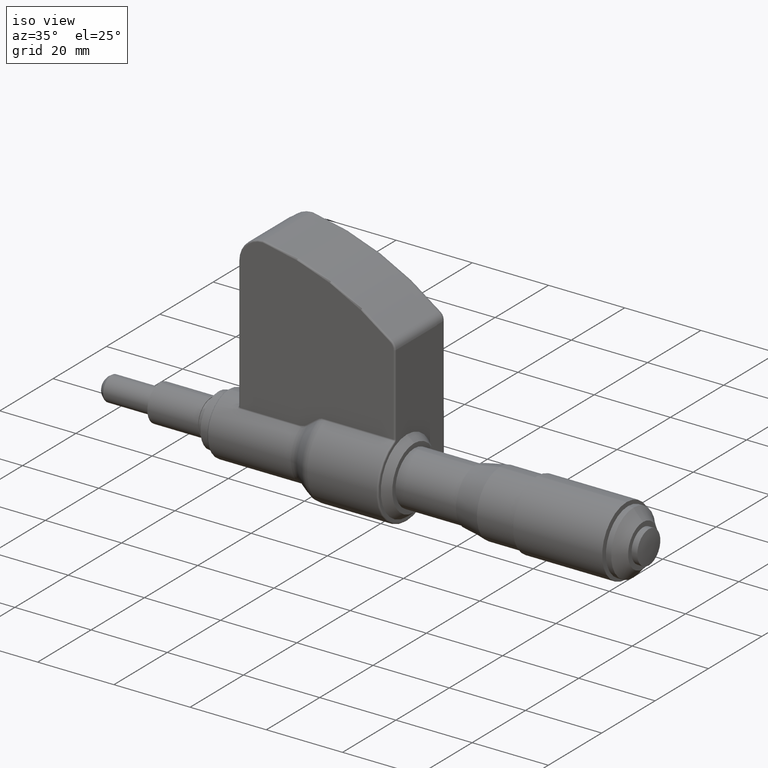
[diagram: clean part render]
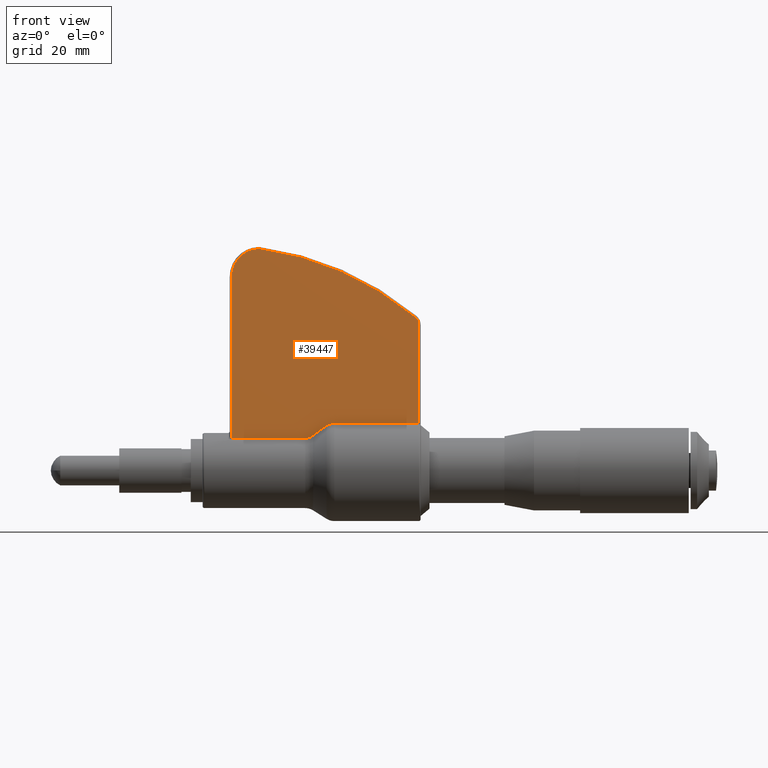
[diagram: tour spotlight — one face highlighted and labeled with its STEP entity id]
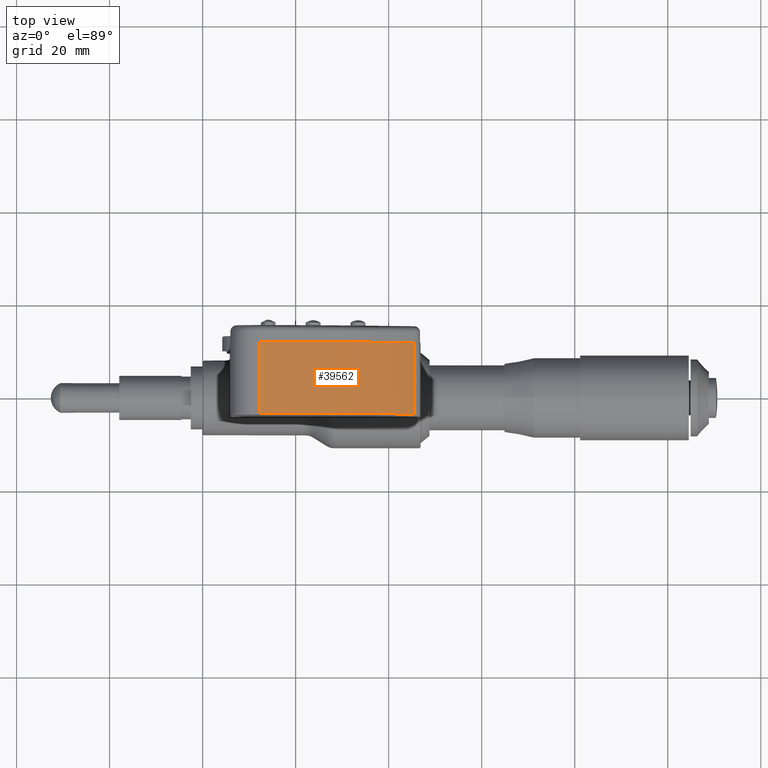
[diagram: tour spotlight — one face highlighted and labeled with its STEP entity id]
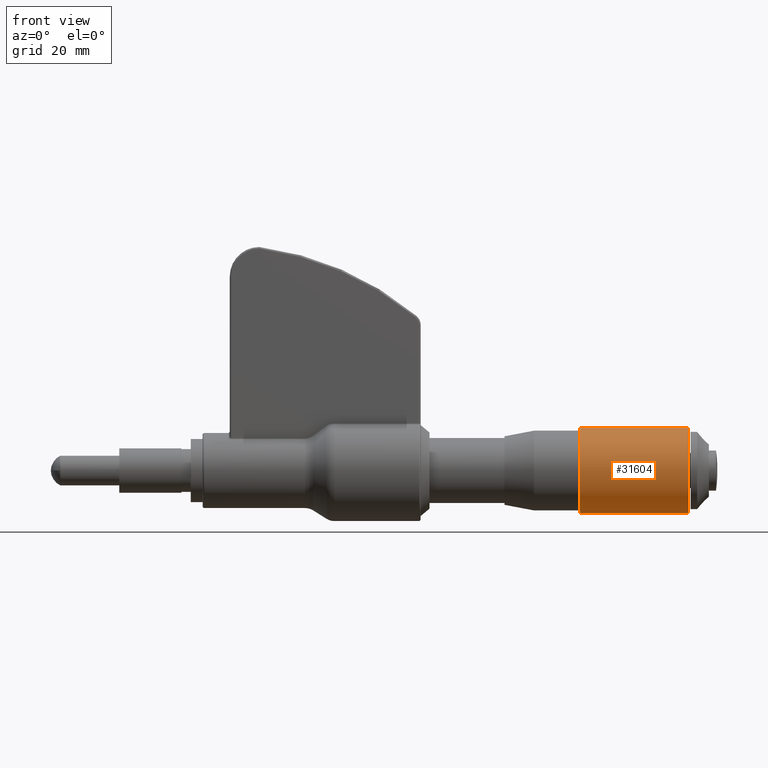
[diagram: tour spotlight — one face highlighted and labeled with its STEP entity id]
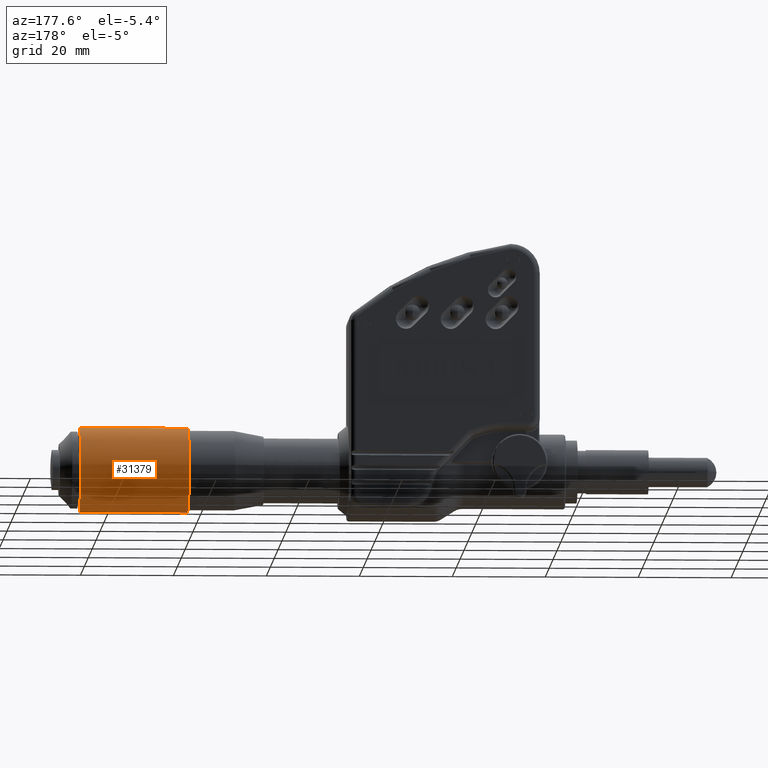
[diagram: tour spotlight — one face highlighted and labeled with its STEP entity id]
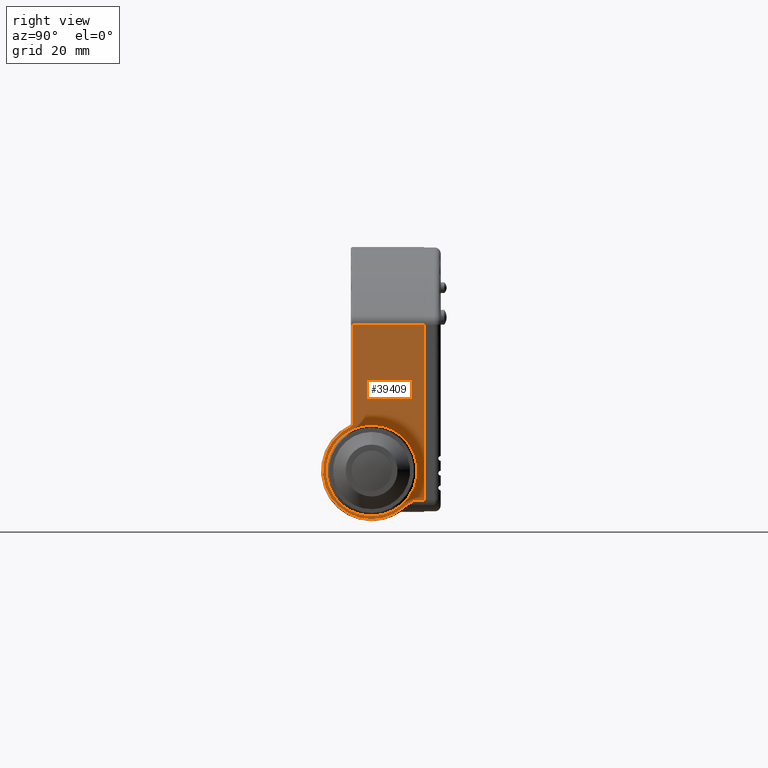
[diagram: tour spotlight — one face highlighted and labeled with its STEP entity id]
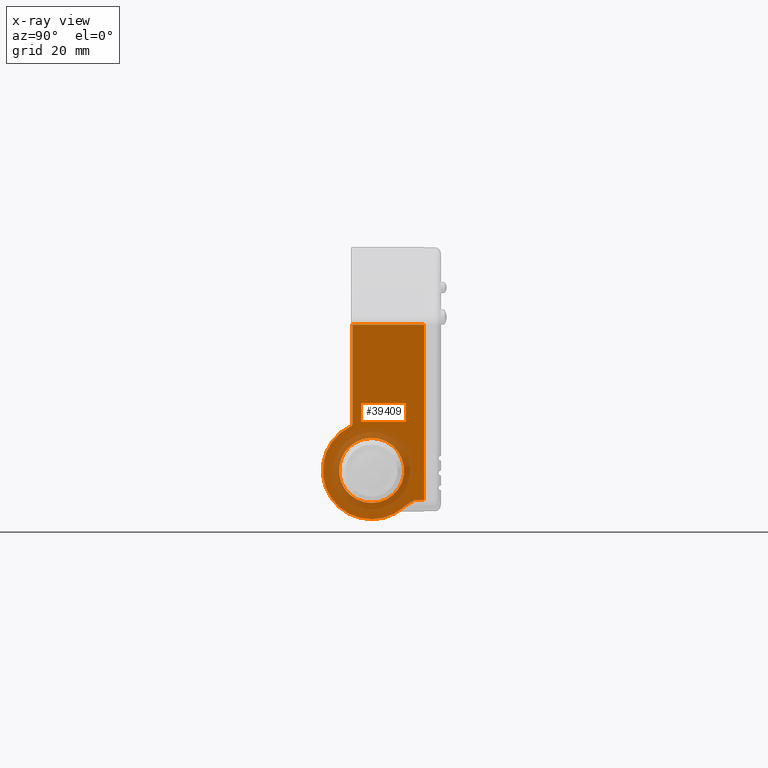
[diagram: x-ray of the same camera — body ghosted, this tour face saturated]
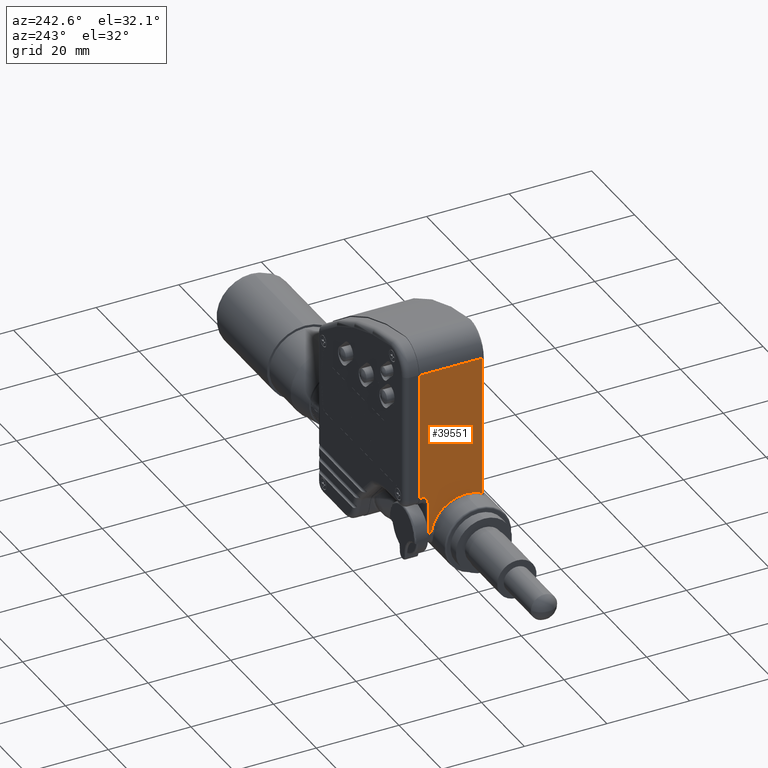
[diagram: tour spotlight — one face highlighted and labeled with its STEP entity id]
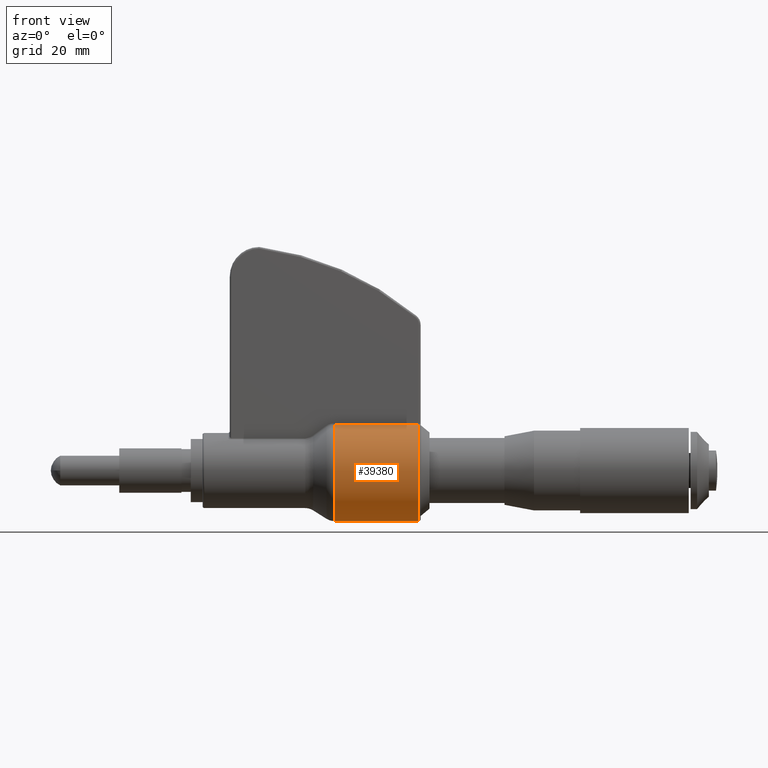
[diagram: tour spotlight — one face highlighted and labeled with its STEP entity id]
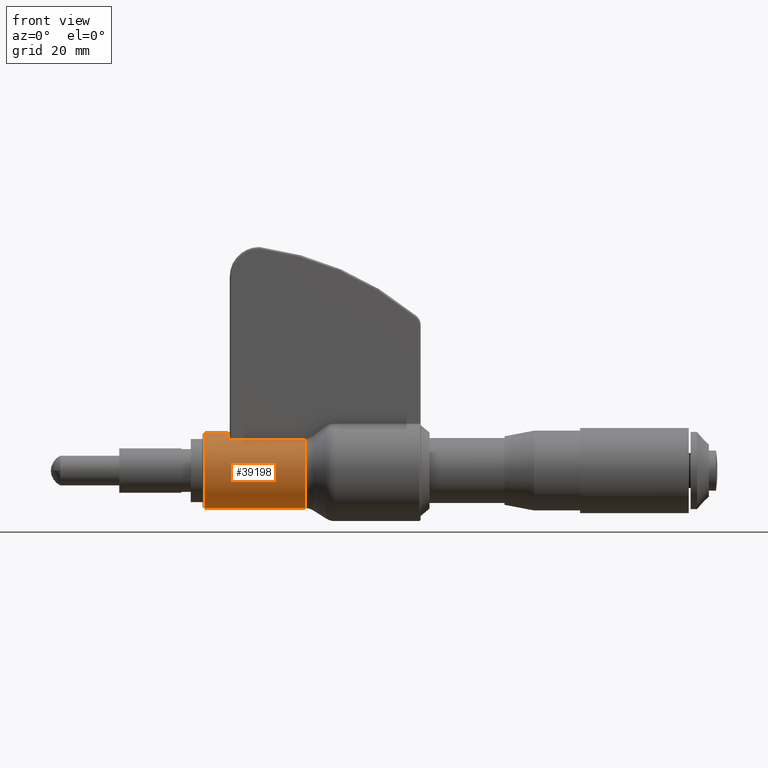
[diagram: tour spotlight — one face highlighted and labeled with its STEP entity id]
A machine part: a face-by-face anatomy tour. The part has 1125 B-rep faces; the first image is the clean iso view, then the 8 largest visible faces are spotlighted one at a time (largest first), each with its STEP entity span.

Face 1 — front view, entity #39447. In plain terms, the highlighted planar face has unit normal (0, 1, 0).
Definition (entity closure, byte-faithful):
#39422 = VERTEX_POINT ( 'NONE', #67612 ) ;
#39424 = ORIENTED_EDGE ( 'NONE', *, *, #39426, .T. ) ;
#39426 = EDGE_CURVE ( 'NONE', #39422, #39428, #67656, .T. ) ;
#39428 = VERTEX_POINT ( 'NONE', #67658 ) ;
#39442 = ORIENTED_EDGE ( 'NONE', *, *, #39443, .T. ) ;
#39443 = EDGE_CURVE ( 'NONE', #39525, #39527, #67636, .T. ) ;
#39447 = ADVANCED_FACE ( 'NONE', ( #67627 ), #67673, .F. ) ;
#39449 = EDGE_LOOP ( 'NONE', ( #39442, #39452, #39424, #39598, #39491, #39483, #39495, #39504, #39488, #39501 ) ) ;
#39452 = ORIENTED_EDGE ( 'NONE', *, *, #39454, .T. ) ;
#39454 = EDGE_CURVE ( 'NONE', #39527, #39422, #67699, .T. ) ;
#39483 = ORIENTED_EDGE ( 'NONE', *, *, #39493, .T. ) ;
#39485 = VERTEX_POINT ( 'NONE', #67755 ) ;
#39488 = ORIENTED_EDGE ( 'NONE', *, *, #39500, .T. ) ;
#39489 = VERTEX_POINT ( 'NONE', #67752 ) ;
#39490 = EDGE_CURVE ( 'NONE', #39496, #39508, #67747, .T. ) ;
#39491 = ORIENTED_EDGE ( 'NONE', *, *, #39492, .T. ) ;
#39492 = EDGE_CURVE ( 'NONE', #39497, #39506, #67742, .T. ) ;
#39493 = EDGE_CURVE ( 'NONE', #39506, #39485, #67804, .T. ) ;
#39495 = ORIENTED_EDGE ( 'NONE', *, *, #39507, .T. ) ;
#39496 = VERTEX_POINT ( 'NONE', #67793 ) ;
#39497 = VERTEX_POINT ( 'NONE', #67792 ) ;
#39500 = EDGE_CURVE ( 'NONE', #39508, #39489, #67785, .T. ) ;
#39501 = ORIENTED_EDGE ( 'NONE', *, *, #39600, .T. ) ;
#39504 = ORIENTED_EDGE ( 'NONE', *, *, #39490, .T. ) ;
#39506 = VERTEX_POINT ( 'NONE', #67781 ) ;
#39507 = EDGE_CURVE ( 'NONE', #39485, #39496, #67779, .T. ) ;
#39508 = VERTEX_POINT ( 'NONE', #67775 ) ;
#39525 = VERTEX_POINT ( 'NONE', #67807 ) ;
#39527 = VERTEX_POINT ( 'NONE', #67862 ) ;
#39598 = ORIENTED_EDGE ( 'NONE', *, *, #39599, .T. ) ;
#39599 = EDGE_CURVE ( 'NONE', #39428, #39497, #67944, .T. ) ;
#39600 = EDGE_CURVE ( 'NONE', #39489, #39525, #67992, .T. ) ;
#67612 = CARTESIAN_POINT ( 'NONE',  ( 0.8687595900000001400, -0.1749999999999999900, 0.2728667257105564200 ) ) ;
#67627 = FACE_OUTER_BOUND ( 'NONE', #39449, .T. ) ;
#67633 = DIRECTION ( 'NONE',  ( -1.110507314497669100E-016, 0.0000000000000000000, -1.000000000000000000 ) ) ;
#67634 = VECTOR ( 'NONE', #67633, 39.37007874015748100 ) ;
#67635 = CARTESIAN_POINT ( 'NONE',  ( 0.2449999999999997700, -0.1749999999999999900, -0.3129943732329020800 ) ) ;
#67636 = LINE ( 'NONE', #67635, #67634 ) ;
#67650 = CARTESIAN_POINT ( 'NONE',  ( 0.9275970943113064400, -0.1749999999999999900, 0.2934127593448664400 ) ) ;
#67651 = CARTESIAN_POINT ( 'NONE',  ( 0.9190925088394984500, -0.1749999999999999900, 0.2869986295453074700 ) ) ;
#67652 = CARTESIAN_POINT ( 'NONE',  ( 0.9098859447414349200, -0.1749999999999999900, 0.2818967657093212600 ) ) ;
#67653 = CARTESIAN_POINT ( 'NONE',  ( 0.8898417192702291500, -0.1749999999999999900, 0.2747421813549663100 ) ) ;
#67654 = CARTESIAN_POINT ( 'NONE',  ( 0.8794328815080491000, -0.1750000000000000200, 0.2728667254296451800 ) ) ;
#67655 = CARTESIAN_POINT ( 'NONE',  ( 0.8687595900000001400, -0.1749999999999999900, 0.2728667257105564200 ) ) ;
#67656 = B_SPLINE_CURVE_WITH_KNOTS ( 'NONE', 3,
 ( #67655, #67654, #67653, #67652, #67651, #67650 ),
 .UNSPECIFIED., .F., .F.,
 ( 4, 2, 4 ),
 ( 0.0000000000000000000, 0.0008021624092953027600, 0.001604324818590605500 ),
 .UNSPECIFIED. ) ;
#67658 = CARTESIAN_POINT ( 'NONE',  ( 0.9275970943113064400, -0.1749999999999999900, 0.2934127593448664400 ) ) ;
#67668 = DIRECTION ( 'NONE',  ( 0.0000000000000000000, 0.0000000000000000000, 1.000000000000000000 ) ) ;
#67669 = DIRECTION ( 'NONE',  ( 0.0000000000000000000, 1.000000000000000000, 0.0000000000000000000 ) ) ;
#67670 = CARTESIAN_POINT ( 'NONE',  ( 0.5318198378830824000, -0.1749999999999999900, -0.3129943732329020800 ) ) ;
#67671 = AXIS2_PLACEMENT_3D ( 'NONE', #67670, #67669, #67668 ) ;
#67673 = PLANE ( 'NONE',  #67671 ) ;
#67692 = DIRECTION ( 'NONE',  ( 1.000000000000000000, 0.0000000000000000000, 0.0000000000000000000 ) ) ;
#67693 = VECTOR ( 'NONE', #67692, 39.37007874015748100 ) ;
#67694 = CARTESIAN_POINT ( 'NONE',  ( 0.8687595900000001400, -0.1749999999999999900, 0.2728667257105563700 ) ) ;
#67699 = LINE ( 'NONE', #67694, #67693 ) ;
#67742 = B_SPLINE_CURVE_WITH_KNOTS ( 'NONE', 3,
 ( #67743, #67802, #67801, #67800, #67799, #67798, #67797, #67796 ),
 .UNSPECIFIED., .F., .F.,
 ( 4, 2, 2, 4 ),
 ( 0.0000000000000000000, 0.0005070738336131922800, 0.001014147667226384600, 0.002028295334452769100 ),
 .UNSPECIFIED. ) ;
#67743 = CARTESIAN_POINT ( 'NONE',  ( 1.040115906627592700, -0.1749999999999999900, 0.3754513084660061100 ) ) ;
#67744 = DIRECTION ( 'NONE',  ( 3.213938816075602100E-015, 0.0000000000000000000, 1.000000000000000000 ) ) ;
#67745 = DIRECTION ( 'NONE',  ( 0.0000000000000000000, -1.000000000000000000, 0.0000000000000000000 ) ) ;
#67746 = AXIS2_PLACEMENT_3D ( 'NONE', #67754, #67745, #67744 ) ;
#67747 = CIRCLE ( 'NONE', #67746, 0.08500000000000004800 ) ;
#67752 = CARTESIAN_POINT ( 'NONE',  ( 0.4790553771423048400, -0.1749999999999999900, 1.877498101455429100 ) ) ;
#67754 = CARTESIAN_POINT ( 'NONE',  ( 1.745000000000000100, -0.1749999999999999900, 1.233573783103438100 ) ) ;
#67755 = CARTESIAN_POINT ( 'NONE',  ( 1.830000000000000100, -0.1749999999999999900, 0.3996326438117887600 ) ) ;
#67775 = CARTESIAN_POINT ( 'NONE',  ( 1.786715275236673100, -0.1749999999999999900, 1.307633460471953500 ) ) ;
#67776 = DIRECTION ( 'NONE',  ( 0.0000000000000000000, 0.0000000000000000000, 1.000000000000000000 ) ) ;
#67777 = VECTOR ( 'NONE', #67776, 39.37007874015748100 ) ;
#67778 = CARTESIAN_POINT ( 'NONE',  ( 1.830000000000000100, -0.1749999999999999900, 1.233573783103438100 ) ) ;
#67779 = LINE ( 'NONE', #67778, #67777 ) ;
#67781 = CARTESIAN_POINT ( 'NONE',  ( 1.115000000000000200, -0.1749999999999999900, 0.3996326438117889200 ) ) ;
#67782 = DIRECTION ( 'NONE',  ( 6.217652968829031300E-015, 0.0000000000000000000, 1.000000000000000000 ) ) ;
#67783 = DIRECTION ( 'NONE',  ( 0.0000000000000000000, -1.000000000000000000, 0.0000000000000000000 ) ) ;
#67784 = AXIS2_PLACEMENT_3D ( 'NONE', #67791, #67783, #67782 ) ;
#67785 = CIRCLE ( 'NONE', #67784, 2.553836076535482800 ) ;
#67791 = CARTESIAN_POINT ( 'NONE',  ( 0.1532163167739461800, -0.1749999999999999900, -0.6554660934262140900 ) ) ;
#67792 = CARTESIAN_POINT ( 'NONE',  ( 1.040115906627592700, -0.1749999999999999900, 0.3754513084660061100 ) ) ;
#67793 = CARTESIAN_POINT ( 'NONE',  ( 1.830000000000000100, -0.1749999999999999900, 1.233573783103438100 ) ) ;
#67794 = DIRECTION ( 'NONE',  ( 1.000000000000000000, 0.0000000000000000000, 0.0000000000000000000 ) ) ;
#67795 = VECTOR ( 'NONE', #67794, 39.37007874015748100 ) ;
#67796 = CARTESIAN_POINT ( 'NONE',  ( 1.115000000000000200, -0.1749999999999999900, 0.3996326438117889200 ) ) ;
#67797 = CARTESIAN_POINT ( 'NONE',  ( 1.101559856250260900, -0.1749999999999999900, 0.3996326438117889200 ) ) ;
#67798 = CARTESIAN_POINT ( 'NONE',  ( 1.088484272777702900, -0.1749999999999999900, 0.3975357850398482100 ) ) ;
#67799 = CARTESIAN_POINT ( 'NONE',  ( 1.069399912299291700, -0.1749999999999999900, 0.3913477375704913500 ) ) ;
#67800 = CARTESIAN_POINT ( 'NONE',  ( 1.063184555811832500, -0.1749999999999999300, 0.3887799341134965400 ) ) ;
#67801 = CARTESIAN_POINT ( 'NONE',  ( 1.051302521058279400, -0.1749999999999999900, 0.3827815465446525200 ) ) ;
#67802 = CARTESIAN_POINT ( 'NONE',  ( 1.045593635308603300, -0.1750000000000000200, 0.3793377804408295500 ) ) ;
#67803 = CARTESIAN_POINT ( 'NONE',  ( 1.845000000000000200, -0.1749999999999999900, 0.3996326438117887600 ) ) ;
#67804 = LINE ( 'NONE', #67803, #67795 ) ;
#67807 = CARTESIAN_POINT ( 'NONE',  ( 0.2450000000000000200, -0.1749999999999999900, 1.642499999999999800 ) ) ;
#67862 = CARTESIAN_POINT ( 'NONE',  ( 0.2449999999999998600, -0.1749999999999999900, 0.2728667257105563700 ) ) ;
#67944 = B_SPLINE_CURVE_WITH_KNOTS ( 'NONE', 3,
 ( #67996, #67995, #67994, #67993 ),
 .UNSPECIFIED., .F., .F.,
 ( 4, 4 ),
 ( 8.673617379884035500E-019, 0.003536972268658876200 ),
 .UNSPECIFIED. ) ;
#67988 = DIRECTION ( 'NONE',  ( 0.0000000000000000000, 0.0000000000000000000, 1.000000000000000000 ) ) ;
#67989 = DIRECTION ( 'NONE',  ( 0.0000000000000000000, -1.000000000000000000, 0.0000000000000000000 ) ) ;
#67990 = CARTESIAN_POINT ( 'NONE',  ( 0.4800000000000000900, -0.1749999999999999900, 1.642499999999999800 ) ) ;
#67991 = AXIS2_PLACEMENT_3D ( 'NONE', #67990, #67989, #67988 ) ;
#67992 = CIRCLE ( 'NONE', #67991, 0.2350000000000001000 ) ;
#67993 = CARTESIAN_POINT ( 'NONE',  ( 1.040115906627592700, -0.1749999999999999900, 0.3754513084660061100 ) ) ;
#67994 = CARTESIAN_POINT ( 'NONE',  ( 1.002256291789083600, -0.1749999999999999900, 0.3485897494848983500 ) ) ;
#67995 = CARTESIAN_POINT ( 'NONE',  ( 0.9646607315882883600, -0.1749999999999999900, 0.3213660300982192400 ) ) ;
#67996 = CARTESIAN_POINT ( 'NONE',  ( 0.9275970943113064400, -0.1749999999999999900, 0.2934127593448664400 ) ) ;

Face 2 — top view, entity #39562. In plain terms, the highlighted cylindrical surface (partial cylindrical patch) has radius 65.2484 mm, axis along (0, -1, 0).
Definition (entity closure, byte-faithful):
#39558 = EDGE_CURVE ( 'NONE', #39669, #39674, #67871, .T. ) ;
#39560 = EDGE_LOOP ( 'NONE', ( #39567, #39569, #39581, #39580 ) ) ;
#39562 = ADVANCED_FACE ( 'NONE', ( #67867 ), #67896, .T. ) ;
#39567 = ORIENTED_EDGE ( 'NONE', *, *, #39558, .T. ) ;
#39569 = ORIENTED_EDGE ( 'NONE', *, *, #39594, .T. ) ;
#39580 = ORIENTED_EDGE ( 'NONE', *, *, #39633, .F. ) ;
#39581 = ORIENTED_EDGE ( 'NONE', *, *, #39582, .F. ) ;
#39582 = EDGE_CURVE ( 'NONE', #39583, #39595, #67934, .T. ) ;
#39583 = VERTEX_POINT ( 'NONE', #67930 ) ;
#39594 = EDGE_CURVE ( 'NONE', #39674, #39595, #67949, .T. ) ;
#39595 = VERTEX_POINT ( 'NONE', #67950 ) ;
#39633 = EDGE_CURVE ( 'NONE', #39669, #39583, #68027, .T. ) ;
#39669 = VERTEX_POINT ( 'NONE', #68119 ) ;
#39674 = VERTEX_POINT ( 'NONE', #68117 ) ;
#67867 = FACE_OUTER_BOUND ( 'NONE', #39560, .T. ) ;
#67868 = DIRECTION ( 'NONE',  ( 0.0000000000000000000, -1.000000000000000000, 0.0000000000000000000 ) ) ;
#67869 = VECTOR ( 'NONE', #67868, 39.37007874015748100 ) ;
#67870 = CARTESIAN_POINT ( 'NONE',  ( 0.4799999988337663200, 0.4449999999999999500, 1.892499999999999600 ) ) ;
#67871 = LINE ( 'NONE', #67870, #67869 ) ;
#67893 = DIRECTION ( 'NONE',  ( 0.0000000000000000000, 0.0000000000000000000, -1.000000000000000000 ) ) ;
#67894 = DIRECTION ( 'NONE',  ( 0.0000000000000000000, -1.000000000000000000, 0.0000000000000000000 ) ) ;
#67895 = AXIS2_PLACEMENT_3D ( 'NONE', #67898, #67894, #67893 ) ;
#67896 = CYLINDRICAL_SURFACE ( 'NONE', #67895, 2.568836076535483000 ) ;
#67898 = CARTESIAN_POINT ( 'NONE',  ( 0.1532163167739461800, 0.4449999999999999500, -0.6554660934262140900 ) ) ;
#67930 = CARTESIAN_POINT ( 'NONE',  ( 1.795304165165008300, 0.4449999999999999500, 1.319999999999999800 ) ) ;
#67931 = DIRECTION ( 'NONE',  ( 0.0000000000000000000, -1.000000000000000000, 0.0000000000000000000 ) ) ;
#67932 = VECTOR ( 'NONE', #67931, 39.37007874015748100 ) ;
#67933 = CARTESIAN_POINT ( 'NONE',  ( 1.795304165165008300, 0.4449999999999999500, 1.319999999999999800 ) ) ;
#67934 = LINE ( 'NONE', #67933, #67932 ) ;
#67945 = DIRECTION ( 'NONE',  ( 0.0000000000000000000, 0.0000000000000000000, 1.000000000000000000 ) ) ;
#67946 = DIRECTION ( 'NONE',  ( 0.0000000000000000000, 1.000000000000000000, 0.0000000000000000000 ) ) ;
#67947 = CARTESIAN_POINT ( 'NONE',  ( 0.1532163167739461800, -0.1600000000000000000, -0.6554660934262140900 ) ) ;
#67948 = AXIS2_PLACEMENT_3D ( 'NONE', #67947, #67946, #67945 ) ;
#67949 = CIRCLE ( 'NONE', #67948, 2.568836076535483000 ) ;
#67950 = CARTESIAN_POINT ( 'NONE',  ( 1.795304165165008300, -0.1600000000000000000, 1.319999999999999800 ) ) ;
#68027 = CIRCLE ( 'NONE', #68076, 2.568836076535483000 ) ;
#68073 = DIRECTION ( 'NONE',  ( 0.0000000000000000000, 0.0000000000000000000, 1.000000000000000000 ) ) ;
#68074 = DIRECTION ( 'NONE',  ( 0.0000000000000000000, 1.000000000000000000, 0.0000000000000000000 ) ) ;
#68075 = CARTESIAN_POINT ( 'NONE',  ( 0.1532163167739461800, 0.4449999999999999500, -0.6554660934262140900 ) ) ;
#68076 = AXIS2_PLACEMENT_3D ( 'NONE', #68075, #68074, #68073 ) ;
#68117 = CARTESIAN_POINT ( 'NONE',  ( 0.4799999988337663200, -0.1600000000000000000, 1.892499999999999600 ) ) ;
#68119 = CARTESIAN_POINT ( 'NONE',  ( 0.4799999988337663200, 0.4449999999999999500, 1.892499999999999600 ) ) ;

Face 3 — front view, entity #31604. In plain terms, the highlighted cylindrical surface (partial cylindrical patch) has radius 9.144 mm, axis along (-1, 0, 0).
Definition (entity closure, byte-faithful):
#31253 = VERTEX_POINT ( 'NONE', #46082 ) ;
#31257 = EDGE_CURVE ( 'NONE', #31387, #31253, #46077, .T. ) ;
#31387 = VERTEX_POINT ( 'NONE', #46663 ) ;
#31388 = VERTEX_POINT ( 'NONE', #46662 ) ;
#31392 = EDGE_CURVE ( 'NONE', #31388, #31393, #46661, .T. ) ;
#31393 = VERTEX_POINT ( 'NONE', #46657 ) ;
#31555 = ORIENTED_EDGE ( 'NONE', *, *, #31594, .T. ) ;
#31556 = ORIENTED_EDGE ( 'NONE', *, *, #31257, .T. ) ;
#31557 = ORIENTED_EDGE ( 'NONE', *, *, #31559, .F. ) ;
#31559 = EDGE_CURVE ( 'NONE', #31393, #31253, #46995, .T. ) ;
#31594 = EDGE_CURVE ( 'NONE', #31388, #31387, #47076, .T. ) ;
#31604 = ADVANCED_FACE ( 'NONE', ( #47071 ), #47107, .T. ) ;
#31607 = EDGE_LOOP ( 'NONE', ( #31609, #31555, #31556, #31557 ) ) ;
#31609 = ORIENTED_EDGE ( 'NONE', *, *, #31392, .F. ) ;
#46072 = DIRECTION ( 'NONE',  ( -1.000000000000000000, 0.0000000000000000000, 0.0000000000000000000 ) ) ;
#46074 = VECTOR ( 'NONE', #46072, 39.37007874015748100 ) ;
#46075 = CARTESIAN_POINT ( 'NONE',  ( -1.285000000000000400, 0.0000000000000000000, 0.3599999999999999900 ) ) ;
#46077 = LINE ( 'NONE', #46075, #46074 ) ;
#46082 = CARTESIAN_POINT ( 'NONE',  ( 3.194999999999999000, 0.0000000000000000000, 0.3599999999999998800 ) ) ;
#46657 = CARTESIAN_POINT ( 'NONE',  ( 3.194999999999999000, 4.408582873760556900E-017, -0.3599999999999998800 ) ) ;
#46658 = DIRECTION ( 'NONE',  ( -1.000000000000000000, 0.0000000000000000000, 0.0000000000000000000 ) ) ;
#46659 = VECTOR ( 'NONE', #46658, 39.37007874015748100 ) ;
#46660 = CARTESIAN_POINT ( 'NONE',  ( -1.285000000000000400, 4.408582873760557600E-017, -0.3599999999999999900 ) ) ;
#46661 = LINE ( 'NONE', #46660, #46659 ) ;
#46662 = CARTESIAN_POINT ( 'NONE',  ( 4.115000000000000200, 4.408582873760558800E-017, -0.3600000000000000400 ) ) ;
#46663 = CARTESIAN_POINT ( 'NONE',  ( 4.115000000000000200, 0.0000000000000000000, 0.3600000000000000400 ) ) ;
#46991 = DIRECTION ( 'NONE',  ( 0.0000000000000000000, 0.0000000000000000000, 1.000000000000000000 ) ) ;
#46992 = DIRECTION ( 'NONE',  ( -1.000000000000000000, 0.0000000000000000000, 0.0000000000000000000 ) ) ;
#46993 = CARTESIAN_POINT ( 'NONE',  ( 3.194999999999999000, 0.0000000000000000000, 0.0000000000000000000 ) ) ;
#46994 = AXIS2_PLACEMENT_3D ( 'NONE', #46993, #46992, #46991 ) ;
#46995 = CIRCLE ( 'NONE', #46994, 0.3599999999999998800 ) ;
#47071 = FACE_OUTER_BOUND ( 'NONE', #31607, .T. ) ;
#47072 = DIRECTION ( 'NONE',  ( 0.0000000000000000000, 0.0000000000000000000, 1.000000000000000000 ) ) ;
#47073 = DIRECTION ( 'NONE',  ( -1.000000000000000000, 0.0000000000000000000, 0.0000000000000000000 ) ) ;
#47074 = CARTESIAN_POINT ( 'NONE',  ( 4.115000000000000200, 0.0000000000000000000, 0.0000000000000000000 ) ) ;
#47075 = AXIS2_PLACEMENT_3D ( 'NONE', #47074, #47073, #47072 ) ;
#47076 = CIRCLE ( 'NONE', #47075, 0.3600000000000000400 ) ;
#47104 = DIRECTION ( 'NONE',  ( 0.0000000000000000000, 0.0000000000000000000, 1.000000000000000000 ) ) ;
#47105 = DIRECTION ( 'NONE',  ( -1.000000000000000000, 0.0000000000000000000, 0.0000000000000000000 ) ) ;
#47106 = AXIS2_PLACEMENT_3D ( 'NONE', #47109, #47105, #47104 ) ;
#47107 = CYLINDRICAL_SURFACE ( 'NONE', #47106, 0.3599999999999999900 ) ;
#47109 = CARTESIAN_POINT ( 'NONE',  ( -1.285000000000000400, 0.0000000000000000000, 0.0000000000000000000 ) ) ;

Face 4 — auxiliary view, entity #31379. In plain terms, the highlighted cylindrical surface (partial cylindrical patch) has radius 9.144 mm, axis along (-1, 0, 0).
Definition (entity closure, byte-faithful):
#31252 = EDGE_CURVE ( 'NONE', #31253, #31393, #46091, .T. ) ;
#31253 = VERTEX_POINT ( 'NONE', #46082 ) ;
#31255 = ORIENTED_EDGE ( 'NONE', *, *, #31257, .F. ) ;
#31257 = EDGE_CURVE ( 'NONE', #31387, #31253, #46077, .T. ) ;
#31379 = ADVANCED_FACE ( 'NONE', ( #46634 ), #46614, .T. ) ;
#31382 = EDGE_LOOP ( 'NONE', ( #31383, #31390, #31395, #31255 ) ) ;
#31383 = ORIENTED_EDGE ( 'NONE', *, *, #31385, .T. ) ;
#31385 = EDGE_CURVE ( 'NONE', #31387, #31388, #46667, .T. ) ;
#31387 = VERTEX_POINT ( 'NONE', #46663 ) ;
#31388 = VERTEX_POINT ( 'NONE', #46662 ) ;
#31390 = ORIENTED_EDGE ( 'NONE', *, *, #31392, .T. ) ;
#31392 = EDGE_CURVE ( 'NONE', #31388, #31393, #46661, .T. ) ;
#31393 = VERTEX_POINT ( 'NONE', #46657 ) ;
#31395 = ORIENTED_EDGE ( 'NONE', *, *, #31252, .F. ) ;
#46072 = DIRECTION ( 'NONE',  ( -1.000000000000000000, 0.0000000000000000000, 0.0000000000000000000 ) ) ;
#46074 = VECTOR ( 'NONE', #46072, 39.37007874015748100 ) ;
#46075 = CARTESIAN_POINT ( 'NONE',  ( -1.285000000000000400, 0.0000000000000000000, 0.3599999999999999900 ) ) ;
#46077 = LINE ( 'NONE', #46075, #46074 ) ;
#46082 = CARTESIAN_POINT ( 'NONE',  ( 3.194999999999999000, 0.0000000000000000000, 0.3599999999999998800 ) ) ;
#46084 = DIRECTION ( 'NONE',  ( 0.0000000000000000000, 0.0000000000000000000, 1.000000000000000000 ) ) ;
#46086 = DIRECTION ( 'NONE',  ( -1.000000000000000000, 0.0000000000000000000, 0.0000000000000000000 ) ) ;
#46087 = CARTESIAN_POINT ( 'NONE',  ( 3.194999999999999000, 0.0000000000000000000, 0.0000000000000000000 ) ) ;
#46089 = AXIS2_PLACEMENT_3D ( 'NONE', #46087, #46086, #46084 ) ;
#46091 = CIRCLE ( 'NONE', #46089, 0.3599999999999998800 ) ;
#46614 = CYLINDRICAL_SURFACE ( 'NONE', #46670, 0.3599999999999999900 ) ;
#46615 = CARTESIAN_POINT ( 'NONE',  ( 4.115000000000000200, 0.0000000000000000000, 0.0000000000000000000 ) ) ;
#46616 = CARTESIAN_POINT ( 'NONE',  ( -1.285000000000000400, 0.0000000000000000000, 0.0000000000000000000 ) ) ;
#46634 = FACE_OUTER_BOUND ( 'NONE', #31382, .T. ) ;
#46657 = CARTESIAN_POINT ( 'NONE',  ( 3.194999999999999000, 4.408582873760556900E-017, -0.3599999999999998800 ) ) ;
#46658 = DIRECTION ( 'NONE',  ( -1.000000000000000000, 0.0000000000000000000, 0.0000000000000000000 ) ) ;
#46659 = VECTOR ( 'NONE', #46658, 39.37007874015748100 ) ;
#46660 = CARTESIAN_POINT ( 'NONE',  ( -1.285000000000000400, 4.408582873760557600E-017, -0.3599999999999999900 ) ) ;
#46661 = LINE ( 'NONE', #46660, #46659 ) ;
#46662 = CARTESIAN_POINT ( 'NONE',  ( 4.115000000000000200, 4.408582873760558800E-017, -0.3600000000000000400 ) ) ;
#46663 = CARTESIAN_POINT ( 'NONE',  ( 4.115000000000000200, 0.0000000000000000000, 0.3600000000000000400 ) ) ;
#46664 = DIRECTION ( 'NONE',  ( 0.0000000000000000000, 0.0000000000000000000, 1.000000000000000000 ) ) ;
#46665 = DIRECTION ( 'NONE',  ( -1.000000000000000000, 0.0000000000000000000, 0.0000000000000000000 ) ) ;
#46666 = AXIS2_PLACEMENT_3D ( 'NONE', #46615, #46665, #46664 ) ;
#46667 = CIRCLE ( 'NONE', #46666, 0.3600000000000000400 ) ;
#46668 = DIRECTION ( 'NONE',  ( 0.0000000000000000000, 0.0000000000000000000, 1.000000000000000000 ) ) ;
#46669 = DIRECTION ( 'NONE',  ( -1.000000000000000000, 0.0000000000000000000, 0.0000000000000000000 ) ) ;
#46670 = AXIS2_PLACEMENT_3D ( 'NONE', #46616, #46669, #46668 ) ;

Face 5 — right view, entity #39409. An x-ray twin of the same camera follows (body ghosted, this face saturated) — the face is partly hidden behind the body. In plain terms, the highlighted planar face has unit normal (1, 0, 0).
Definition (entity closure, byte-faithful):
#38898 = ORIENTED_EDGE ( 'NONE', *, *, #38974, .T. ) ;
#38947 = VERTEX_POINT ( 'NONE', #66601 ) ;
#38957 = EDGE_CURVE ( 'NONE', #38947, #38978, #66634, .T. ) ;
#38974 = EDGE_CURVE ( 'NONE', #38975, #39067, #66617, .T. ) ;
#38975 = VERTEX_POINT ( 'NONE', #66613 ) ;
#38978 = VERTEX_POINT ( 'NONE', #66612 ) ;
#39067 = VERTEX_POINT ( 'NONE', #66816 ) ;
#39287 = EDGE_CURVE ( 'NONE', #38978, #38947, #67292, .T. ) ;
#39342 = VERTEX_POINT ( 'NONE', #67408 ) ;
#39345 = ORIENTED_EDGE ( 'NONE', *, *, #39455, .T. ) ;
#39350 = EDGE_CURVE ( 'NONE', #38975, #39467, #67406, .T. ) ;
#39359 = ORIENTED_EDGE ( 'NONE', *, *, #39361, .F. ) ;
#39361 = EDGE_CURVE ( 'NONE', #39457, #39342, #67432, .T. ) ;
#39398 = EDGE_LOOP ( 'NONE', ( #38898, #39345, #39462, #39480, #39359, #39472, #39468, #39479 ) ) ;
#39409 = ADVANCED_FACE ( 'NONE', ( #67561, #67558 ), #67602, .T. ) ;
#39412 = EDGE_LOOP ( 'NONE', ( #39420, #39416 ) ) ;
#39416 = ORIENTED_EDGE ( 'NONE', *, *, #38957, .F. ) ;
#39420 = ORIENTED_EDGE ( 'NONE', *, *, #39287, .F. ) ;
#39455 = EDGE_CURVE ( 'NONE', #39067, #39466, #67691, .T. ) ;
#39457 = VERTEX_POINT ( 'NONE', #67737 ) ;
#39462 = ORIENTED_EDGE ( 'NONE', *, *, #39463, .T. ) ;
#39463 = EDGE_CURVE ( 'NONE', #39466, #39464, #67730, .T. ) ;
#39464 = VERTEX_POINT ( 'NONE', #67729 ) ;
#39466 = VERTEX_POINT ( 'NONE', #67731 ) ;
#39467 = VERTEX_POINT ( 'NONE', #67728 ) ;
#39468 = ORIENTED_EDGE ( 'NONE', *, *, #39470, .T. ) ;
#39470 = EDGE_CURVE ( 'NONE', #39474, #39467, #67719, .T. ) ;
#39472 = ORIENTED_EDGE ( 'NONE', *, *, #39473, .T. ) ;
#39473 = EDGE_CURVE ( 'NONE', #39457, #39474, #67715, .T. ) ;
#39474 = VERTEX_POINT ( 'NONE', #67710 ) ;
#39479 = ORIENTED_EDGE ( 'NONE', *, *, #39350, .F. ) ;
#39480 = ORIENTED_EDGE ( 'NONE', *, *, #39481, .F. ) ;
#39481 = EDGE_CURVE ( 'NONE', #39342, #39464, #67759, .T. ) ;
#66601 = CARTESIAN_POINT ( 'NONE',  ( 1.845000000000000200, 3.367667473011537600E-017, 0.2750000000000000200 ) ) ;
#66612 = CARTESIAN_POINT ( 'NONE',  ( 1.845000000000000200, 0.0000000000000000000, -0.2750000000000000200 ) ) ;
#66613 = CARTESIAN_POINT ( 'NONE',  ( 1.845000000000000200, -0.1771186440677966200, 0.3725389052482776500 ) ) ;
#66614 = DIRECTION ( 'NONE',  ( 0.0000000000000000000, 0.0000000000000000000, -1.000000000000000000 ) ) ;
#66615 = DIRECTION ( 'NONE',  ( 1.000000000000000000, 0.0000000000000000000, 0.0000000000000000000 ) ) ;
#66616 = AXIS2_PLACEMENT_3D ( 'NONE', #66623, #66615, #66614 ) ;
#66617 = CIRCLE ( 'NONE', #66616, 0.4125000000000000300 ) ;
#66623 = CARTESIAN_POINT ( 'NONE',  ( 1.845000000000000200, 0.0000000000000000000, 0.0000000000000000000 ) ) ;
#66630 = DIRECTION ( 'NONE',  ( 0.0000000000000000000, 0.0000000000000000000, -1.000000000000000000 ) ) ;
#66631 = DIRECTION ( 'NONE',  ( 1.000000000000000000, 0.0000000000000000000, 0.0000000000000000000 ) ) ;
#66632 = CARTESIAN_POINT ( 'NONE',  ( 1.845000000000000200, 0.0000000000000000000, 0.0000000000000000000 ) ) ;
#66633 = AXIS2_PLACEMENT_3D ( 'NONE', #66632, #66631, #66630 ) ;
#66634 = CIRCLE ( 'NONE', #66633, 0.2750000000000000200 ) ;
#66816 = CARTESIAN_POINT ( 'NONE',  ( 1.845000000000000200, 0.0000000000000000000, -0.4125000000000000300 ) ) ;
#67288 = DIRECTION ( 'NONE',  ( 0.0000000000000000000, 0.0000000000000000000, -1.000000000000000000 ) ) ;
#67289 = DIRECTION ( 'NONE',  ( 1.000000000000000000, 0.0000000000000000000, 0.0000000000000000000 ) ) ;
#67290 = CARTESIAN_POINT ( 'NONE',  ( 1.845000000000000200, 0.0000000000000000000, 0.0000000000000000000 ) ) ;
#67291 = AXIS2_PLACEMENT_3D ( 'NONE', #67290, #67289, #67288 ) ;
#67292 = CIRCLE ( 'NONE', #67291, 0.2750000000000000200 ) ;
#67406 = CIRCLE ( 'NONE', #67456, 0.03000000000000002300 ) ;
#67408 = CARTESIAN_POINT ( 'NONE',  ( 1.845000000000000200, 0.4449999999999999500, -0.2500000000000000600 ) ) ;
#67432 = LINE ( 'NONE', #67482, #67481 ) ;
#67453 = DIRECTION ( 'NONE',  ( 0.0000000000000000000, 0.0000000000000000000, -1.000000000000000000 ) ) ;
#67454 = DIRECTION ( 'NONE',  ( 1.000000000000000000, 0.0000000000000000000, 0.0000000000000000000 ) ) ;
#67455 = CARTESIAN_POINT ( 'NONE',  ( 1.845000000000000200, -0.1899999999999999700, 0.3996326438117887600 ) ) ;
#67456 = AXIS2_PLACEMENT_3D ( 'NONE', #67455, #67454, #67453 ) ;
#67480 = DIRECTION ( 'NONE',  ( 0.0000000000000000000, 0.0000000000000000000, -1.000000000000000000 ) ) ;
#67481 = VECTOR ( 'NONE', #67480, 39.37007874015748100 ) ;
#67482 = CARTESIAN_POINT ( 'NONE',  ( 1.845000000000000200, 0.4449999999999999500, 1.233573783103438100 ) ) ;
#67558 = FACE_OUTER_BOUND ( 'NONE', #39398, .T. ) ;
#67561 = FACE_BOUND ( 'NONE', #39412, .T. ) ;
#67598 = DIRECTION ( 'NONE',  ( 0.0000000000000000000, 0.0000000000000000000, -1.000000000000000000 ) ) ;
#67599 = DIRECTION ( 'NONE',  ( 1.000000000000000000, 0.0000000000000000000, 0.0000000000000000000 ) ) ;
#67600 = CARTESIAN_POINT ( 'NONE',  ( 1.845000000000000200, 0.0000000000000000000, 0.0000000000000000000 ) ) ;
#67601 = AXIS2_PLACEMENT_3D ( 'NONE', #67600, #67599, #67598 ) ;
#67602 = PLANE ( 'NONE',  #67601 ) ;
#67691 = CIRCLE ( 'NONE', #67741, 0.4125000000000000300 ) ;
#67710 = CARTESIAN_POINT ( 'NONE',  ( 1.845000000000000200, -0.1600000000000000000, 1.233573783103438100 ) ) ;
#67712 = DIRECTION ( 'NONE',  ( 0.0000000000000000000, -1.000000000000000000, 0.0000000000000000000 ) ) ;
#67713 = VECTOR ( 'NONE', #67712, 39.37007874015748100 ) ;
#67714 = CARTESIAN_POINT ( 'NONE',  ( 1.845000000000000200, 0.4449999999999999500, 1.233573783103438100 ) ) ;
#67715 = LINE ( 'NONE', #67714, #67713 ) ;
#67716 = DIRECTION ( 'NONE',  ( 0.0000000000000000000, 0.0000000000000000000, -1.000000000000000000 ) ) ;
#67717 = VECTOR ( 'NONE', #67716, 39.37007874015748100 ) ;
#67718 = CARTESIAN_POINT ( 'NONE',  ( 1.845000000000000200, -0.1599999999999999800, 0.3900400620449135900 ) ) ;
#67719 = LINE ( 'NONE', #67718, #67717 ) ;
#67720 = CARTESIAN_POINT ( 'NONE',  ( 1.845000000000000200, 0.3651112844051762100, -0.2500000000000000600 ) ) ;
#67721 = CARTESIAN_POINT ( 'NONE',  ( 1.844999999999999500, 0.3502595359668679300, -0.2588015876761231000 ) ) ;
#67722 = CARTESIAN_POINT ( 'NONE',  ( 1.844999999999999800, 0.3349390069033961200, -0.2670118251360381600 ) ) ;
#67723 = CARTESIAN_POINT ( 'NONE',  ( 1.845000000000000200, 0.3125259170974878900, -0.2800951398976647700 ) ) ;
#67724 = CARTESIAN_POINT ( 'NONE',  ( 1.844999999999999800, 0.3051431006378883000, -0.2845867721289388500 ) ) ;
#67725 = CARTESIAN_POINT ( 'NONE',  ( 1.845000000000000200, 0.2908326708063797600, -0.2942435894064003300 ) ) ;
#67726 = CARTESIAN_POINT ( 'NONE',  ( 1.845000000000000600, 0.2838944769209673600, -0.2993931187269429100 ) ) ;
#67727 = CARTESIAN_POINT ( 'NONE',  ( 1.845000000000000200, 0.2774404186018174500, -0.3052590115394602800 ) ) ;
#67728 = CARTESIAN_POINT ( 'NONE',  ( 1.845000000000000200, -0.1599999999999999800, 0.3996326438117887600 ) ) ;
#67729 = CARTESIAN_POINT ( 'NONE',  ( 1.845000000000000200, 0.3651112844051762100, -0.2500000000000000600 ) ) ;
#67730 = B_SPLINE_CURVE_WITH_KNOTS ( 'NONE', 3,
 ( #67727, #67726, #67725, #67724, #67723, #67722, #67721, #67720 ),
 .UNSPECIFIED., .F., .F.,
 ( 4, 2, 2, 4 ),
 ( 0.0000000000000000000, 0.0006577547379641070100, 0.001315509475928214000, 0.002631018951856428000 ),
 .UNSPECIFIED. ) ;
#67731 = CARTESIAN_POINT ( 'NONE',  ( 1.845000000000000200, 0.2774404186018174500, -0.3052590115394602800 ) ) ;
#67737 = CARTESIAN_POINT ( 'NONE',  ( 1.845000000000000200, 0.4449999999999999500, 1.233573783103438100 ) ) ;
#67738 = DIRECTION ( 'NONE',  ( 0.0000000000000000000, 0.0000000000000000000, -1.000000000000000000 ) ) ;
#67739 = DIRECTION ( 'NONE',  ( 1.000000000000000000, 0.0000000000000000000, 0.0000000000000000000 ) ) ;
#67740 = CARTESIAN_POINT ( 'NONE',  ( 1.845000000000000200, 0.0000000000000000000, 0.0000000000000000000 ) ) ;
#67741 = AXIS2_PLACEMENT_3D ( 'NONE', #67740, #67739, #67738 ) ;
#67756 = DIRECTION ( 'NONE',  ( 0.0000000000000000000, -1.000000000000000000, 0.0000000000000000000 ) ) ;
#67757 = VECTOR ( 'NONE', #67756, 39.37007874015748100 ) ;
#67758 = CARTESIAN_POINT ( 'NONE',  ( 1.845000000000000200, 0.4449999999999999500, -0.2500000000000000600 ) ) ;
#67759 = LINE ( 'NONE', #67758, #67757 ) ;

Face 6 — auxiliary view, entity #39551. In plain terms, the highlighted planar face has unit normal (1, 0, -0).
Definition (entity closure, byte-faithful):
#39039 = EDGE_CURVE ( 'NONE', #39062, #39046, #66739, .T. ) ;
#39046 = VERTEX_POINT ( 'NONE', #66759 ) ;
#39062 = VERTEX_POINT ( 'NONE', #66822 ) ;
#39229 = EDGE_CURVE ( 'NONE', #39333, #39252, #67204, .T. ) ;
#39252 = VERTEX_POINT ( 'NONE', #67211 ) ;
#39333 = VERTEX_POINT ( 'NONE', #67409 ) ;
#39551 = ADVANCED_FACE ( 'NONE', ( #67610 ), #67877, .F. ) ;
#39554 = EDGE_LOOP ( 'NONE', ( #39556, #39684, #39571, #39586, #39590, #39597, #39676, #39577 ) ) ;
#39556 = ORIENTED_EDGE ( 'NONE', *, *, #39039, .T. ) ;
#39571 = ORIENTED_EDGE ( 'NONE', *, *, #39572, .T. ) ;
#39572 = EDGE_CURVE ( 'NONE', #39683, #39574, #67897, .T. ) ;
#39574 = VERTEX_POINT ( 'NONE', #67889 ) ;
#39577 = ORIENTED_EDGE ( 'NONE', *, *, #39579, .T. ) ;
#39579 = EDGE_CURVE ( 'NONE', #39679, #39062, #67938, .T. ) ;
#39586 = ORIENTED_EDGE ( 'NONE', *, *, #39588, .F. ) ;
#39588 = EDGE_CURVE ( 'NONE', #39593, #39574, #67963, .T. ) ;
#39590 = ORIENTED_EDGE ( 'NONE', *, *, #39592, .F. ) ;
#39592 = EDGE_CURVE ( 'NONE', #39333, #39593, #67955, .T. ) ;
#39593 = VERTEX_POINT ( 'NONE', #67951 ) ;
#39597 = ORIENTED_EDGE ( 'NONE', *, *, #39229, .T. ) ;
#39676 = ORIENTED_EDGE ( 'NONE', *, *, #39678, .T. ) ;
#39678 = EDGE_CURVE ( 'NONE', #39252, #39679, #68110, .T. ) ;
#39679 = VERTEX_POINT ( 'NONE', #68109 ) ;
#39681 = EDGE_CURVE ( 'NONE', #39046, #39683, #68108, .T. ) ;
#39683 = VERTEX_POINT ( 'NONE', #68149 ) ;
#39684 = ORIENTED_EDGE ( 'NONE', *, *, #39681, .T. ) ;
#66736 = DIRECTION ( 'NONE',  ( 0.0000000000000000000, -1.000000000000000000, 0.0000000000000000000 ) ) ;
#66737 = VECTOR ( 'NONE', #66736, 39.37007874015748100 ) ;
#66738 = CARTESIAN_POINT ( 'NONE',  ( 0.2299999999999997300, 0.3749999999999999400, 0.03976493430146743600 ) ) ;
#66739 = LINE ( 'NONE', #66738, #66737 ) ;
#66759 = CARTESIAN_POINT ( 'NONE',  ( 0.2299999999999997300, 0.3301136168048812700, 0.03976493430146743600 ) ) ;
#66822 = CARTESIAN_POINT ( 'NONE',  ( 0.2299999999999997300, 0.3599999999999999900, 0.03976493430146743600 ) ) ;
#67201 = DIRECTION ( 'NONE',  ( 0.0000000000000000000, -1.000000000000000000, 0.0000000000000000000 ) ) ;
#67202 = VECTOR ( 'NONE', #67201, 39.37007874015748100 ) ;
#67203 = CARTESIAN_POINT ( 'NONE',  ( 0.2299999999999998400, 0.4449999999999999500, 0.4125000000000007000 ) ) ;
#67204 = LINE ( 'NONE', #67203, #67202 ) ;
#67211 = CARTESIAN_POINT ( 'NONE',  ( 0.2299999999999998400, 0.3900000000000000100, 0.4125000000000007000 ) ) ;
#67409 = CARTESIAN_POINT ( 'NONE',  ( 0.2299999999999998400, 0.4449999999999999500, 0.4125000000000007000 ) ) ;
#67610 = FACE_OUTER_BOUND ( 'NONE', #39554, .T. ) ;
#67873 = DIRECTION ( 'NONE',  ( -1.110507314497669100E-016, 0.0000000000000000000, -1.000000000000000000 ) ) ;
#67874 = DIRECTION ( 'NONE',  ( 1.000000000000000000, 0.0000000000000000000, -1.110507314497669100E-016 ) ) ;
#67875 = CARTESIAN_POINT ( 'NONE',  ( 0.2299999999999999800, 0.4449999999999999500, 1.642499999999999800 ) ) ;
#67876 = AXIS2_PLACEMENT_3D ( 'NONE', #67875, #67874, #67873 ) ;
#67877 = PLANE ( 'NONE',  #67876 ) ;
#67889 = CARTESIAN_POINT ( 'NONE',  ( 0.2300000000000000100, -0.1600000000000000000, 1.642499999999999800 ) ) ;
#67890 = DIRECTION ( 'NONE',  ( 1.110507314497669100E-016, 0.0000000000000000000, 1.000000000000000000 ) ) ;
#67891 = VECTOR ( 'NONE', #67890, 39.37007874015748100 ) ;
#67892 = CARTESIAN_POINT ( 'NONE',  ( 0.2299999999999999800, -0.1600000000000000000, 1.642499999999999800 ) ) ;
#67897 = LINE ( 'NONE', #67892, #67891 ) ;
#67935 = DIRECTION ( 'NONE',  ( -1.110507314497669100E-016, 0.0000000000000000000, -1.000000000000000000 ) ) ;
#67936 = VECTOR ( 'NONE', #67935, 39.37007874015748100 ) ;
#67937 = CARTESIAN_POINT ( 'NONE',  ( 0.2299999999999997900, 0.3599999999999999900, 0.03976493430146749200 ) ) ;
#67938 = LINE ( 'NONE', #67937, #67936 ) ;
#67951 = CARTESIAN_POINT ( 'NONE',  ( 0.2300000000000000100, 0.4449999999999999500, 1.642499999999999800 ) ) ;
#67952 = DIRECTION ( 'NONE',  ( 1.110507314497668900E-016, 0.0000000000000000000, 1.000000000000000000 ) ) ;
#67953 = VECTOR ( 'NONE', #67952, 39.37007874015748100 ) ;
#67954 = CARTESIAN_POINT ( 'NONE',  ( 0.2299999999999999800, 0.4449999999999999500, 1.642499999999999800 ) ) ;
#67955 = LINE ( 'NONE', #67954, #67953 ) ;
#67956 = DIRECTION ( 'NONE',  ( 0.0000000000000000000, -1.000000000000000000, 0.0000000000000000000 ) ) ;
#67957 = VECTOR ( 'NONE', #67956, 39.37007874015748100 ) ;
#67958 = CARTESIAN_POINT ( 'NONE',  ( 0.2300000000000000100, 0.4449999999999999500, 1.642499999999999800 ) ) ;
#67963 = LINE ( 'NONE', #67958, #67957 ) ;
#68102 = CARTESIAN_POINT ( 'NONE',  ( 0.2299999999999998700, 0.3611048744993027900, 0.3490529057154337900 ) ) ;
#68103 = CARTESIAN_POINT ( 'NONE',  ( 0.2299999999999998700, 0.3646814946490974900, 0.3626537912066272700 ) ) ;
#68104 = CARTESIAN_POINT ( 'NONE',  ( 0.2299999999999997900, 0.3671635586588741800, 0.3692824812820058600 ) ) ;
#68105 = CARTESIAN_POINT ( 'NONE',  ( 0.2299999999999997600, 0.3756790257157781600, 0.3884346340930073200 ) ) ;
#68106 = CARTESIAN_POINT ( 'NONE',  ( 0.2299999999999998700, 0.3828692824707066200, 0.4004971350907723900 ) ) ;
#68107 = CARTESIAN_POINT ( 'NONE',  ( 0.2299999999999998400, 0.3900000000000000100, 0.4125000000000007000 ) ) ;
#68108 = CIRCLE ( 'NONE', #68153, 0.3325000000000000200 ) ;
#68109 = CARTESIAN_POINT ( 'NONE',  ( 0.2299999999999998400, 0.3599999999999999900, 0.3350403330758516800 ) ) ;
#68110 = B_SPLINE_CURVE_WITH_KNOTS ( 'NONE', 3,
 ( #68107, #68106, #68105, #68104, #68103, #68102, #68155, #68154 ),
 .UNSPECIFIED., .F., .F.,
 ( 4, 2, 2, 4 ),
 ( -9.293008124421707300E-006, 0.001054552596159632600, 0.001586475398301659800, 0.002118398200443686900 ),
 .UNSPECIFIED. ) ;
#68149 = CARTESIAN_POINT ( 'NONE',  ( 0.2299999999999998400, -0.1600000000000000000, 0.2914725544541029700 ) ) ;
#68150 = DIRECTION ( 'NONE',  ( -1.027010523933933500E-016, 0.0000000000000000000, -1.000000000000000000 ) ) ;
#68151 = DIRECTION ( 'NONE',  ( 1.000000000000000000, 0.0000000000000000000, -1.110507314497669100E-016 ) ) ;
#68152 = CARTESIAN_POINT ( 'NONE',  ( 0.2299999999999997900, 0.0000000000000000000, -1.665760971746492400E-018 ) ) ;
#68153 = AXIS2_PLACEMENT_3D ( 'NONE', #68152, #68151, #68150 ) ;
#68154 = CARTESIAN_POINT ( 'NONE',  ( 0.2299999999999998400, 0.3599999999999999900, 0.3350403330758516800 ) ) ;
#68155 = CARTESIAN_POINT ( 'NONE',  ( 0.2299999999999998400, 0.3599999999999999300, 0.3421386318225394000 ) ) ;

Face 7 — front view, entity #39380. In plain terms, the highlighted cylindrical surface (partial cylindrical patch) has radius 10.8585 mm, axis along (-1, 0, 0).
Definition (entity closure, byte-faithful):
#38883 = VERTEX_POINT ( 'NONE', #66475 ) ;
#38983 = EDGE_CURVE ( 'NONE', #38984, #38883, #66605, .T. ) ;
#38984 = VERTEX_POINT ( 'NONE', #66661 ) ;
#39023 = VERTEX_POINT ( 'NONE', #66705 ) ;
#39035 = VERTEX_POINT ( 'NONE', #66742 ) ;
#39122 = EDGE_CURVE ( 'NONE', #39023, #39035, #66995, .T. ) ;
#39289 = EDGE_CURVE ( 'NONE', #39393, #38984, #67287, .T. ) ;
#39290 = ORIENTED_EDGE ( 'NONE', *, *, #38983, .T. ) ;
#39291 = ORIENTED_EDGE ( 'NONE', *, *, #39390, .T. ) ;
#39292 = VERTEX_POINT ( 'NONE', #67282 ) ;
#39312 = VERTEX_POINT ( 'NONE', #67307 ) ;
#39319 = EDGE_CURVE ( 'NONE', #39035, #39312, #67337, .T. ) ;
#39378 = ORIENTED_EDGE ( 'NONE', *, *, #39122, .T. ) ;
#39380 = ADVANCED_FACE ( 'NONE', ( #67517 ), #67535, .T. ) ;
#39382 = ORIENTED_EDGE ( 'NONE', *, *, #39383, .T. ) ;
#39383 = EDGE_CURVE ( 'NONE', #39404, #39388, #67531, .T. ) ;
#39385 = ORIENTED_EDGE ( 'NONE', *, *, #39387, .T. ) ;
#39387 = EDGE_CURVE ( 'NONE', #38883, #39023, #67529, .T. ) ;
#39388 = VERTEX_POINT ( 'NONE', #67525 ) ;
#39390 = EDGE_CURVE ( 'NONE', #39388, #39292, #67566, .T. ) ;
#39392 = ORIENTED_EDGE ( 'NONE', *, *, #39415, .T. ) ;
#39393 = VERTEX_POINT ( 'NONE', #67562 ) ;
#39396 = EDGE_LOOP ( 'NONE', ( #39378, #39406, #39400, #39382, #39291, #39392, #39417, #39290, #39385 ) ) ;
#39400 = ORIENTED_EDGE ( 'NONE', *, *, #39401, .T. ) ;
#39401 = EDGE_CURVE ( 'NONE', #39312, #39404, #67560, .T. ) ;
#39404 = VERTEX_POINT ( 'NONE', #67559 ) ;
#39406 = ORIENTED_EDGE ( 'NONE', *, *, #39319, .T. ) ;
#39415 = EDGE_CURVE ( 'NONE', #39292, #39393, #67595, .T. ) ;
#39417 = ORIENTED_EDGE ( 'NONE', *, *, #39289, .T. ) ;
#66475 = CARTESIAN_POINT ( 'NONE',  ( 1.830000000000000100, -0.1835593220338983300, 0.3860857745300332300 ) ) ;
#66602 = DIRECTION ( 'NONE',  ( 0.0000000000000000000, 0.0000000000000000000, -1.000000000000000000 ) ) ;
#66603 = DIRECTION ( 'NONE',  ( -1.000000000000000000, 0.0000000000000000000, 0.0000000000000000000 ) ) ;
#66604 = AXIS2_PLACEMENT_3D ( 'NONE', #66611, #66603, #66602 ) ;
#66605 = CIRCLE ( 'NONE', #66604, 0.4274999999999999900 ) ;
#66611 = CARTESIAN_POINT ( 'NONE',  ( 1.830000000000000100, 0.0000000000000000000, 0.0000000000000000000 ) ) ;
#66661 = CARTESIAN_POINT ( 'NONE',  ( 1.830000000000000100, 0.0000000000000000000, -0.4274999999999999900 ) ) ;
#66705 = CARTESIAN_POINT ( 'NONE',  ( 1.115000000000000200, -0.1835593220338982100, 0.3860857745300332300 ) ) ;
#66742 = CARTESIAN_POINT ( 'NONE',  ( 1.115000000000000200, 0.0000000000000000000, -0.4275000000000001000 ) ) ;
#66991 = DIRECTION ( 'NONE',  ( 0.0000000000000000000, 0.0000000000000000000, -1.000000000000000000 ) ) ;
#66992 = DIRECTION ( 'NONE',  ( 1.000000000000000000, 0.0000000000000000000, 0.0000000000000000000 ) ) ;
#66993 = CARTESIAN_POINT ( 'NONE',  ( 1.115000000000000200, 0.0000000000000000000, 0.0000000000000000000 ) ) ;
#66994 = AXIS2_PLACEMENT_3D ( 'NONE', #66993, #66992, #66991 ) ;
#66995 = CIRCLE ( 'NONE', #66994, 0.4274999999999999900 ) ;
#67282 = CARTESIAN_POINT ( 'NONE',  ( 1.744999999999999900, 0.2416823642651288500, -0.3526271186440679800 ) ) ;
#67283 = DIRECTION ( 'NONE',  ( 0.0000000000000000000, 3.552713678800500900E-015, -1.000000000000000000 ) ) ;
#67284 = DIRECTION ( 'NONE',  ( -1.000000000000000000, 0.0000000000000000000, 0.0000000000000000000 ) ) ;
#67285 = CARTESIAN_POINT ( 'NONE',  ( 1.830000000000000100, 0.0000000000000000000, 0.0000000000000000000 ) ) ;
#67286 = AXIS2_PLACEMENT_3D ( 'NONE', #67285, #67284, #67283 ) ;
#67287 = CIRCLE ( 'NONE', #67286, 0.4274999999999999900 ) ;
#67307 = CARTESIAN_POINT ( 'NONE',  ( 1.115000000000000200, 0.4079067628399381500, -0.1279387463962442500 ) ) ;
#67334 = DIRECTION ( 'NONE',  ( 0.0000000000000000000, 0.0000000000000000000, -1.000000000000000000 ) ) ;
#67335 = DIRECTION ( 'NONE',  ( 1.000000000000000000, 0.0000000000000000000, 0.0000000000000000000 ) ) ;
#67336 = AXIS2_PLACEMENT_3D ( 'NONE', #67344, #67335, #67334 ) ;
#67337 = CIRCLE ( 'NONE', #67336, 0.4274999999999999900 ) ;
#67344 = CARTESIAN_POINT ( 'NONE',  ( 1.115000000000000200, 0.0000000000000000000, 0.0000000000000000000 ) ) ;
#67517 = FACE_OUTER_BOUND ( 'NONE', #39396, .T. ) ;
#67518 = CARTESIAN_POINT ( 'NONE',  ( 1.210845772333015300, 0.2939438503328469200, -0.3105808587284796800 ) ) ;
#67519 = CARTESIAN_POINT ( 'NONE',  ( 1.193045295988222300, 0.3086349498407648400, -0.2959863589657598100 ) ) ;
#67520 = CARTESIAN_POINT ( 'NONE',  ( 1.184857178572491100, 0.3160590619292389900, -0.2880811653549147900 ) ) ;
#67521 = CARTESIAN_POINT ( 'NONE',  ( 1.169787145813387100, 0.3308449557465463800, -0.2709717766057972400 ) ) ;
#67522 = CARTESIAN_POINT ( 'NONE',  ( 1.162871366222437700, 0.3382504108297390600, -0.2617106246253300100 ) ) ;
#67523 = CARTESIAN_POINT ( 'NONE',  ( 1.144449109480686600, 0.3598612403709854400, -0.2320653001888173000 ) ) ;
#67524 = CARTESIAN_POINT ( 'NONE',  ( 1.135376441316499700, 0.3731791990473878900, -0.2103000059726621300 ) ) ;
#67525 = CARTESIAN_POINT ( 'NONE',  ( 1.341062566941302300, 0.2416823642651289000, -0.3526271186440679300 ) ) ;
#67526 = DIRECTION ( 'NONE',  ( -1.000000000000000000, 0.0000000000000000000, 0.0000000000000000000 ) ) ;
#67527 = VECTOR ( 'NONE', #67526, 39.37007874015748100 ) ;
#67528 = CARTESIAN_POINT ( 'NONE',  ( 1.845000000000000200, -0.1835593220338983500, 0.3860857745300332300 ) ) ;
#67529 = LINE ( 'NONE', #67528, #67527 ) ;
#67530 = CARTESIAN_POINT ( 'NONE',  ( 1.130295307479402700, 0.3849506401464252700, -0.1859280899994871800 ) ) ;
#67531 = B_SPLINE_CURVE_WITH_KNOTS ( 'NONE', 3,
 ( #67530, #67524, #67523, #67522, #67521, #67520, #67519, #67518, #67576, #67575, #67574, #67573, #67572, #67571, #67570, #67569, #67568, #67567 ),
 .UNSPECIFIED., .F., .F.,
 ( 4, 2, 2, 2, 2, 2, 2, 2, 4 ),
 ( 0.0000000000000000000, 0.002063607382733909100, 0.003095411074100864500, 0.004127214765467820800, 0.005159018456834775300, 0.006190822148201723800, 0.007222625839568672300, 0.007738527685252145200, 0.008254429530935619000 ),
 .UNSPECIFIED. ) ;
#67532 = DIRECTION ( 'NONE',  ( 0.0000000000000000000, 0.0000000000000000000, 1.000000000000000000 ) ) ;
#67533 = DIRECTION ( 'NONE',  ( -1.000000000000000000, 0.0000000000000000000, 0.0000000000000000000 ) ) ;
#67534 = AXIS2_PLACEMENT_3D ( 'NONE', #67536, #67533, #67532 ) ;
#67535 = CYLINDRICAL_SURFACE ( 'NONE', #67534, 0.4274999999999999900 ) ;
#67536 = CARTESIAN_POINT ( 'NONE',  ( 1.845000000000000200, 0.0000000000000000000, 0.0000000000000000000 ) ) ;
#67553 = CARTESIAN_POINT ( 'NONE',  ( 1.130295307479402700, 0.3849506401464252700, -0.1859280899994871800 ) ) ;
#67554 = CARTESIAN_POINT ( 'NONE',  ( 1.126329757476987700, 0.3941376129314961800, -0.1669071284297180300 ) ) ;
#67555 = CARTESIAN_POINT ( 'NONE',  ( 1.121285097100315200, 0.4017558231651360800, -0.1475497709048124700 ) ) ;
#67556 = CARTESIAN_POINT ( 'NONE',  ( 1.115000000000000200, 0.4079067628399381500, -0.1279387463962442500 ) ) ;
#67559 = CARTESIAN_POINT ( 'NONE',  ( 1.130295307479402700, 0.3849506401464252700, -0.1859280899994871800 ) ) ;
#67560 = B_SPLINE_CURVE_WITH_KNOTS ( 'NONE', 3,
 ( #67556, #67555, #67554, #67553 ),
 .UNSPECIFIED., .F., .F.,
 ( 4, 4 ),
 ( 0.0000000000000000000, 0.001631086264635123600 ),
 .UNSPECIFIED. ) ;
#67562 = CARTESIAN_POINT ( 'NONE',  ( 1.830000000000000100, 0.2875291610964289500, -0.3163593392318042600 ) ) ;
#67563 = DIRECTION ( 'NONE',  ( 1.000000000000000000, 0.0000000000000000000, 0.0000000000000000000 ) ) ;
#67564 = VECTOR ( 'NONE', #67563, 39.37007874015748100 ) ;
#67565 = CARTESIAN_POINT ( 'NONE',  ( 1.845000000000000200, 0.2416823642651289300, -0.3526271186440679800 ) ) ;
#67566 = LINE ( 'NONE', #67565, #67564 ) ;
#67567 = CARTESIAN_POINT ( 'NONE',  ( 1.341062566941302300, 0.2416823642651289000, -0.3526271186440679300 ) ) ;
#67568 = CARTESIAN_POINT ( 'NONE',  ( 1.334154744426629100, 0.2416823642651292100, -0.3526271186440677600 ) ) ;
#67569 = CARTESIAN_POINT ( 'NONE',  ( 1.327313304769559300, 0.2421522573460002100, -0.3523063368125984300 ) ) ;
#67570 = CARTESIAN_POINT ( 'NONE',  ( 1.313755485007142700, 0.2439700445681251800, -0.3510499794181770600 ) ) ;
#67571 = CARTESIAN_POINT ( 'NONE',  ( 1.307018862268856100, 0.2453282347283379500, -0.3501066679849218500 ) ) ;
#67572 = CARTESIAN_POINT ( 'NONE',  ( 1.287485559075395500, 0.2504475332567937500, -0.3464819908383322000 ) ) ;
#67573 = CARTESIAN_POINT ( 'NONE',  ( 1.275112180978738200, 0.2552819812181418800, -0.3429851911013115900 ) ) ;
#67574 = CARTESIAN_POINT ( 'NONE',  ( 1.251702687113547300, 0.2666480968869957000, -0.3342252588838945900 ) ) ;
#67575 = CARTESIAN_POINT ( 'NONE',  ( 1.240870253668991100, 0.2730596728907077100, -0.3290528975460884600 ) ) ;
#67576 = CARTESIAN_POINT ( 'NONE',  ( 1.220467273184930000, 0.2866783455566567200, -0.3172584443817924000 ) ) ;
#67577 = CARTESIAN_POINT ( 'NONE',  ( 1.830000000000000100, 0.2875291610964289500, -0.3163593392318042600 ) ) ;
#67578 = CARTESIAN_POINT ( 'NONE',  ( 1.825178688524162300, 0.2819053581282609000, -0.3214706387860879500 ) ) ;
#67579 = CARTESIAN_POINT ( 'NONE',  ( 1.819827598219616400, 0.2764094560525965900, -0.3261885114106347600 ) ) ;
#67580 = CARTESIAN_POINT ( 'NONE',  ( 1.808083356748746200, 0.2660527153064541400, -0.3346895353154038000 ) ) ;
#67581 = CARTESIAN_POINT ( 'NONE',  ( 1.801678759513946100, 0.2611601090712661900, -0.3384993927264745000 ) ) ;
#67582 = CARTESIAN_POINT ( 'NONE',  ( 1.787358539301646700, 0.2523737808656791300, -0.3450998640652728800 ) ) ;
#67583 = CARTESIAN_POINT ( 'NONE',  ( 1.779683502504637100, 0.2486294723133556100, -0.3477794753428355400 ) ) ;
#67584 = CARTESIAN_POINT ( 'NONE',  ( 1.762930101246158000, 0.2432214820437788900, -0.3515828332626374500 ) ) ;
#67585 = CARTESIAN_POINT ( 'NONE',  ( 1.754074453862324700, 0.2416823642651289000, -0.3526271186440680900 ) ) ;
#67586 = CARTESIAN_POINT ( 'NONE',  ( 1.744999999999999900, 0.2416823642651288500, -0.3526271186440679800 ) ) ;
#67595 = B_SPLINE_CURVE_WITH_KNOTS ( 'NONE', 3,
 ( #67586, #67585, #67584, #67583, #67582, #67581, #67580, #67579, #67578, #67577 ),
 .UNSPECIFIED., .F., .F.,
 ( 4, 2, 2, 2, 4 ),
 ( 0.0000000000000000000, 0.0006813644439260821500, 0.001362728887852164300, 0.002044093331778246700, 0.002725457775704328600 ),
 .UNSPECIFIED. ) ;

Face 8 — front view, entity #39198. In plain terms, the highlighted cylindrical surface (partial cylindrical patch) has radius 8.0645 mm, axis along (-1, 0, 0).
Definition (entity closure, byte-faithful):
#38991 = VERTEX_POINT ( 'NONE', #66655 ) ;
#38996 = VERTEX_POINT ( 'NONE', #66683 ) ;
#39011 = EDGE_CURVE ( 'NONE', #39019, #38996, #66719, .T. ) ;
#39019 = VERTEX_POINT ( 'NONE', #66710 ) ;
#39021 = EDGE_CURVE ( 'NONE', #39026, #38991, #66709, .T. ) ;
#39026 = VERTEX_POINT ( 'NONE', #66704 ) ;
#39079 = EDGE_CURVE ( 'NONE', #39195, #39019, #66859, .T. ) ;
#39082 = ORIENTED_EDGE ( 'NONE', *, *, #39079, .F. ) ;
#39084 = VERTEX_POINT ( 'NONE', #66849 ) ;
#39088 = VERTEX_POINT ( 'NONE', #66848 ) ;
#39092 = EDGE_CURVE ( 'NONE', #39088, #39026, #66872, .T. ) ;
#39093 = ORIENTED_EDGE ( 'NONE', *, *, #39094, .T. ) ;
#39094 = EDGE_CURVE ( 'NONE', #38991, #38996, #66916, .T. ) ;
#39096 = ORIENTED_EDGE ( 'NONE', *, *, #39092, .T. ) ;
#39098 = EDGE_LOOP ( 'NONE', ( #39107, #39082, #39099, #39191, #39096, #39201, #39093 ) ) ;
#39099 = ORIENTED_EDGE ( 'NONE', *, *, #39100, .T. ) ;
#39100 = EDGE_CURVE ( 'NONE', #39195, #39084, #66910, .T. ) ;
#39107 = ORIENTED_EDGE ( 'NONE', *, *, #39011, .F. ) ;
#39191 = ORIENTED_EDGE ( 'NONE', *, *, #39206, .F. ) ;
#39195 = VERTEX_POINT ( 'NONE', #67067 ) ;
#39198 = ADVANCED_FACE ( 'NONE', ( #67069 ), #67140, .T. ) ;
#39201 = ORIENTED_EDGE ( 'NONE', *, *, #39021, .T. ) ;
#39206 = EDGE_CURVE ( 'NONE', #39088, #39084, #67170, .T. ) ;
#66655 = CARTESIAN_POINT ( 'NONE',  ( 0.01499999999999997700, 0.0000000000000000000, 0.3175000000000000000 ) ) ;
#66683 = CARTESIAN_POINT ( 'NONE',  ( 0.01499999999999997700, 3.888125173386048200E-017, -0.3175000000000000000 ) ) ;
#66704 = CARTESIAN_POINT ( 'NONE',  ( 0.2149999999999999100, 0.0000000000000000000, 0.3175000000000000000 ) ) ;
#66706 = DIRECTION ( 'NONE',  ( -1.000000000000000000, 0.0000000000000000000, 0.0000000000000000000 ) ) ;
#66707 = VECTOR ( 'NONE', #66706, 39.37007874015748100 ) ;
#66708 = CARTESIAN_POINT ( 'NONE',  ( 0.9050000000000000300, 0.0000000000000000000, 0.3175000000000000000 ) ) ;
#66709 = LINE ( 'NONE', #66708, #66707 ) ;
#66710 = CARTESIAN_POINT ( 'NONE',  ( 0.8687595900000001400, 0.0000000000000000000, -0.3174999999999999500 ) ) ;
#66711 = DIRECTION ( 'NONE',  ( -1.000000000000000000, 0.0000000000000000000, 0.0000000000000000000 ) ) ;
#66712 = VECTOR ( 'NONE', #66711, 39.37007874015748100 ) ;
#66713 = CARTESIAN_POINT ( 'NONE',  ( 0.9050000000000000300, 3.888125173386048200E-017, -0.3175000000000000000 ) ) ;
#66719 = LINE ( 'NONE', #66713, #66712 ) ;
#66848 = CARTESIAN_POINT ( 'NONE',  ( 0.2149999999999999100, -0.1527819548872180500, 0.2783234166591810300 ) ) ;
#66849 = CARTESIAN_POINT ( 'NONE',  ( 0.2449999999999998600, -0.1814285714285714700, 0.2605569486108320600 ) ) ;
#66855 = DIRECTION ( 'NONE',  ( 0.0000000000000000000, 0.0000000000000000000, -1.000000000000000000 ) ) ;
#66856 = DIRECTION ( 'NONE',  ( 1.000000000000000000, 0.0000000000000000000, 0.0000000000000000000 ) ) ;
#66857 = CARTESIAN_POINT ( 'NONE',  ( 0.8687595900000001400, 0.0000000000000000000, 0.0000000000000000000 ) ) ;
#66858 = AXIS2_PLACEMENT_3D ( 'NONE', #66857, #66856, #66855 ) ;
#66859 = CIRCLE ( 'NONE', #66858, 0.3174999999999999500 ) ;
#66869 = DIRECTION ( 'NONE',  ( -1.000000000000000000, 0.0000000000000000000, 1.110507314497669100E-016 ) ) ;
#66870 = CARTESIAN_POINT ( 'NONE',  ( 0.2149999999999998900, 0.0000000000000000000, 0.0000000000000000000 ) ) ;
#66871 = AXIS2_PLACEMENT_3D ( 'NONE', #66870, #66869, #66917 ) ;
#66872 = CIRCLE ( 'NONE', #66871, 0.3175000000000000000 ) ;
#66907 = DIRECTION ( 'NONE',  ( -1.000000000000000000, 0.0000000000000000000, 0.0000000000000000000 ) ) ;
#66908 = VECTOR ( 'NONE', #66907, 39.37007874015748100 ) ;
#66909 = CARTESIAN_POINT ( 'NONE',  ( 0.9050000000000000300, -0.1814285714285714400, 0.2605569486108320600 ) ) ;
#66910 = LINE ( 'NONE', #66909, #66908 ) ;
#66912 = DIRECTION ( 'NONE',  ( 0.0000000000000000000, 0.0000000000000000000, -1.000000000000000000 ) ) ;
#66913 = DIRECTION ( 'NONE',  ( 1.000000000000000000, 0.0000000000000000000, 0.0000000000000000000 ) ) ;
#66914 = CARTESIAN_POINT ( 'NONE',  ( 0.01499999999999997700, 0.0000000000000000000, 0.0000000000000000000 ) ) ;
#66915 = AXIS2_PLACEMENT_3D ( 'NONE', #66914, #66913, #66912 ) ;
#66916 = CIRCLE ( 'NONE', #66915, 0.3175000000000000000 ) ;
#66917 = DIRECTION ( 'NONE',  ( -1.075530706167032700E-016, 2.664535259100375700E-015, -1.000000000000000000 ) ) ;
#67067 = CARTESIAN_POINT ( 'NONE',  ( 0.8687595900000001400, -0.1814285714285713000, 0.2605569486108320600 ) ) ;
#67069 = FACE_OUTER_BOUND ( 'NONE', #39098, .T. ) ;
#67090 = CARTESIAN_POINT ( 'NONE',  ( 0.9050000000000000300, 0.0000000000000000000, 0.0000000000000000000 ) ) ;
#67137 = DIRECTION ( 'NONE',  ( 0.0000000000000000000, 0.0000000000000000000, 1.000000000000000000 ) ) ;
#67138 = DIRECTION ( 'NONE',  ( -1.000000000000000000, 0.0000000000000000000, 0.0000000000000000000 ) ) ;
#67139 = AXIS2_PLACEMENT_3D ( 'NONE', #67090, #67138, #67137 ) ;
#67140 = CYLINDRICAL_SURFACE ( 'NONE', #67139, 0.3175000000000000000 ) ;
#67159 = CARTESIAN_POINT ( 'NONE',  ( 0.2449999999999998600, -0.1814285714285714700, 0.2605569486108320600 ) ) ;
#67160 = CARTESIAN_POINT ( 'NONE',  ( 0.2407941852164061400, -0.1814285714285714400, 0.2605569486108320600 ) ) ;
#67161 = CARTESIAN_POINT ( 'NONE',  ( 0.2366695264381698500, -0.1805718602290672100, 0.2611581440317464200 ) ) ;
#67162 = CARTESIAN_POINT ( 'NONE',  ( 0.2292572944152232200, -0.1774716124580724100, 0.2632747607960624900 ) ) ;
#67163 = CARTESIAN_POINT ( 'NONE',  ( 0.2259638593334743500, -0.1752308604070907900, 0.2647840865659131200 ) ) ;
#67164 = CARTESIAN_POINT ( 'NONE',  ( 0.2206067179032229200, -0.1698645180008082600, 0.2682582943021656900 ) ) ;
#67165 = CARTESIAN_POINT ( 'NONE',  ( 0.2185413081816713300, -0.1667670001954258100, 0.2702047435468436000 ) ) ;
#67166 = CARTESIAN_POINT ( 'NONE',  ( 0.2157173995594770800, -0.1599968754629703900, 0.2742678173455344000 ) ) ;
#67167 = CARTESIAN_POINT ( 'NONE',  ( 0.2150000000000000200, -0.1564598412721155700, 0.2763044896192554100 ) ) ;
#67168 = CARTESIAN_POINT ( 'NONE',  ( 0.2149999999999999100, -0.1527819548872180500, 0.2783234166591810300 ) ) ;
#67170 = B_SPLINE_CURVE_WITH_KNOTS ( 'NONE', 3,
 ( #67168, #67167, #67166, #67165, #67164, #67163, #67162, #67161, #67160, #67159 ),
 .UNSPECIFIED., .F., .F.,
 ( 4, 2, 2, 2, 4 ),
 ( 0.0000000000000000000, 0.0003197017896656668200, 0.0006394035793313336400, 0.0009591053689970005200, 0.001278807158662667300 ),
 .UNSPECIFIED. ) ;